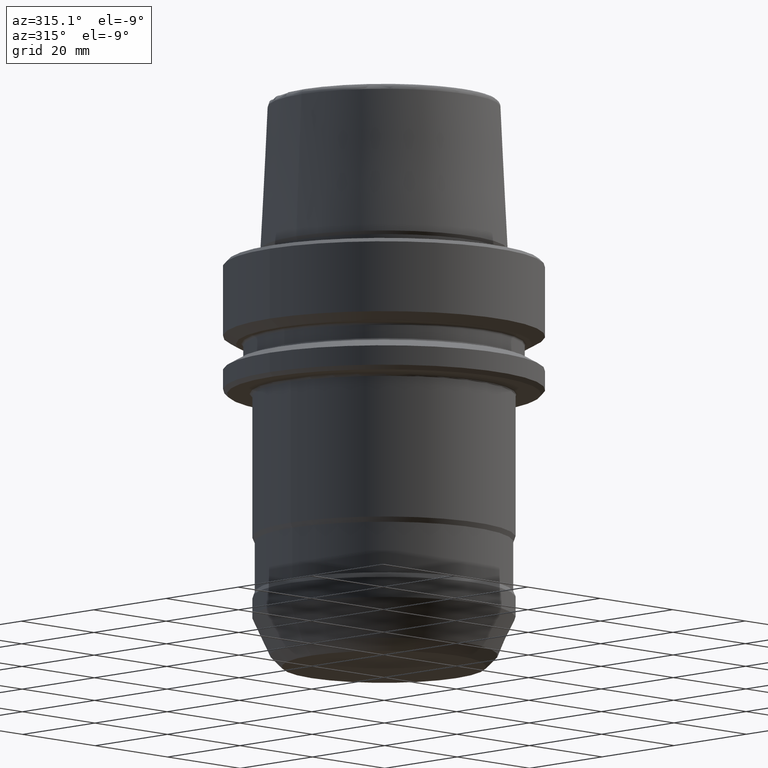
[diagram: clean part render]
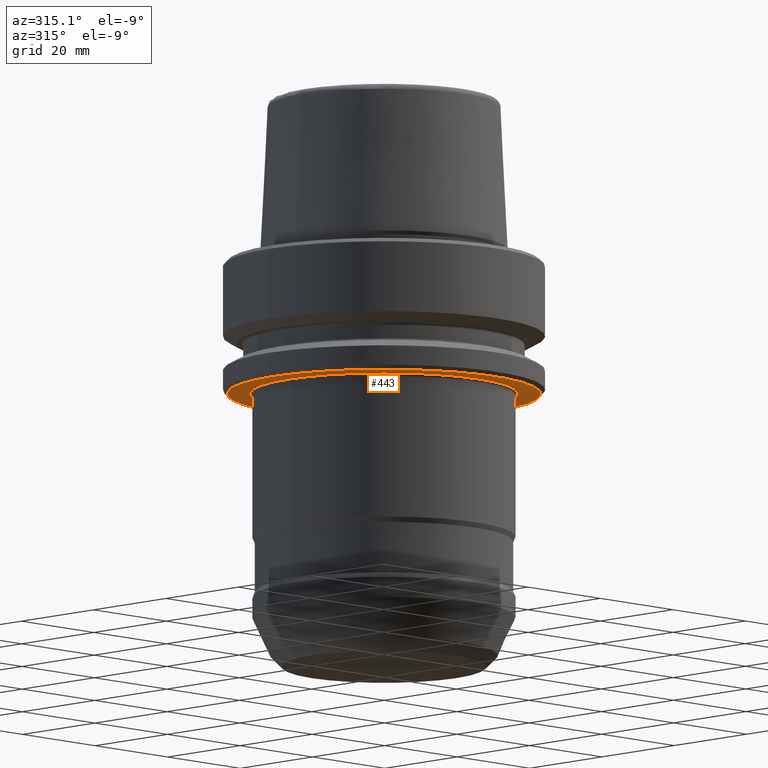
[diagram: same view with one face highlighted and labeled with its STEP entity id]
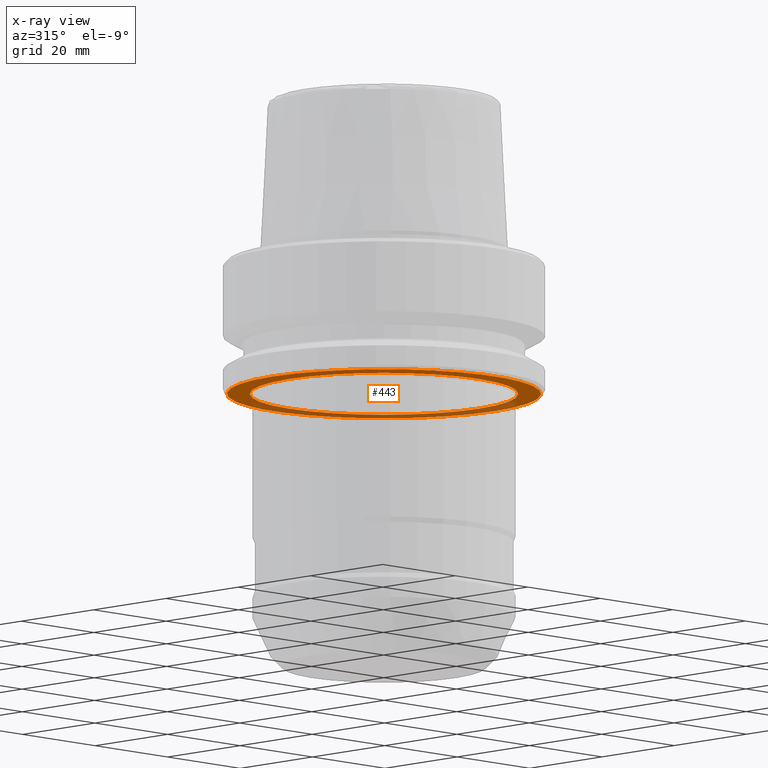
[diagram: x-ray of the same camera — body ghosted, the highlighted face saturated]
A machine part, auxiliary view. The second image highlights one B-rep face of the part: STEP entity #443.
The next image is the same camera in x-ray: the body ghosted, the highlighted face saturated — about 35% of this face is hidden behind the body in this view.
In plain terms, the highlighted planar face has unit normal (0, 0, -1).
Its self-contained STEP definition (entity closure, byte-faithful):
#18 = EDGE_CURVE ( 'NONE', #1224, #1352, #1247, .T. ) ;
#28 = AXIS2_PLACEMENT_3D ( 'NONE', #797, #1065, #1190 ) ;
#53 = DIRECTION ( 'NONE',  ( -0.0000000000000000000, -0.0000000000000000000, 1.000000000000000000 ) ) ;
#56 = VERTEX_POINT ( 'NONE', #414 ) ;
#79 = ORIENTED_EDGE ( 'NONE', *, *, #18, .F. ) ;
#185 = DIRECTION ( 'NONE',  ( -0.0000000000000000000, -0.0000000000000000000, 1.000000000000000000 ) ) ;
#198 = ORIENTED_EDGE ( 'NONE', *, *, #1149, .F. ) ;
#249 = DIRECTION ( 'NONE',  ( 1.000000000000000000, 0.0000000000000000000, 0.0000000000000000000 ) ) ;
#292 = AXIS2_PLACEMENT_3D ( 'NONE', #590, #185, #293 ) ;
#293 = DIRECTION ( 'NONE',  ( 1.000000000000000000, 0.0000000000000000000, 0.0000000000000000000 ) ) ;
#295 = FACE_OUTER_BOUND ( 'NONE', #467, .T. ) ;
#327 = CARTESIAN_POINT ( 'NONE',  ( 0.0000000000000000000, 0.0000000000000000000, -25.99999999999980100 ) ) ;
#383 = DIRECTION ( 'NONE',  ( 1.000000000000000000, 0.0000000000000000000, 0.0000000000000000000 ) ) ;
#414 = CARTESIAN_POINT ( 'NONE',  ( 26.25000000005185500, 0.0000000000000000000, -25.99999999999995400 ) ) ;
#443 = ADVANCED_FACE ( 'NONE', ( #1163, #295 ), #1403, .T. ) ;
#467 = EDGE_LOOP ( 'NONE', ( #79, #198 ) ) ;
#493 = CIRCLE ( 'NONE', #292, 26.25000000005188400 ) ;
#498 = AXIS2_PLACEMENT_3D ( 'NONE', #327, #1010, #249 ) ;
#551 = CARTESIAN_POINT ( 'NONE',  ( -30.70000000000015900, 3.808651545348285800E-015, -25.99999999999980100 ) ) ;
#580 = VERTEX_POINT ( 'NONE', #1089 ) ;
#590 = CARTESIAN_POINT ( 'NONE',  ( 0.0000000000000000000, 0.0000000000000000000, -25.99999999999980100 ) ) ;
#675 = DIRECTION ( 'NONE',  ( 0.0000000000000000000, 0.0000000000000000000, -1.000000000000000000 ) ) ;
#718 = CIRCLE ( 'NONE', #28, 30.70000000000015900 ) ;
#766 = DIRECTION ( 'NONE',  ( -1.000000000000000000, 0.0000000000000000000, -0.0000000000000000000 ) ) ;
#783 = EDGE_CURVE ( 'NONE', #56, #580, #493, .T. ) ;
#797 = CARTESIAN_POINT ( 'NONE',  ( 0.0000000000000000000, 0.0000000000000000000, -25.99999999999980100 ) ) ;
#815 = CARTESIAN_POINT ( 'NONE',  ( 0.0000000000000000000, 0.0000000000000000000, -25.99999999999980100 ) ) ;
#874 = EDGE_LOOP ( 'NONE', ( #1170, #942 ) ) ;
#942 = ORIENTED_EDGE ( 'NONE', *, *, #1043, .T. ) ;
#1010 = DIRECTION ( 'NONE',  ( -0.0000000000000000000, -0.0000000000000000000, 1.000000000000000000 ) ) ;
#1043 = EDGE_CURVE ( 'NONE', #580, #56, #1101, .T. ) ;
#1065 = DIRECTION ( 'NONE',  ( -0.0000000000000000000, -0.0000000000000000000, 1.000000000000000000 ) ) ;
#1084 = CARTESIAN_POINT ( 'NONE',  ( 0.0000000000000000000, 0.0000000000000000000, -25.99999999999979700 ) ) ;
#1089 = CARTESIAN_POINT ( 'NONE',  ( -26.25000000005185500, 3.214697847768152700E-015, -25.99999999999995400 ) ) ;
#1101 = CIRCLE ( 'NONE', #498, 26.25000000005188400 ) ;
#1149 = EDGE_CURVE ( 'NONE', #1352, #1224, #718, .T. ) ;
#1151 = AXIS2_PLACEMENT_3D ( 'NONE', #1084, #675, #766 ) ;
#1163 = FACE_BOUND ( 'NONE', #874, .T. ) ;
#1170 = ORIENTED_EDGE ( 'NONE', *, *, #783, .T. ) ;
#1190 = DIRECTION ( 'NONE',  ( 1.000000000000000000, 0.0000000000000000000, 0.0000000000000000000 ) ) ;
#1224 = VERTEX_POINT ( 'NONE', #1374 ) ;
#1247 = CIRCLE ( 'NONE', #1303, 30.70000000000015900 ) ;
#1303 = AXIS2_PLACEMENT_3D ( 'NONE', #815, #53, #383 ) ;
#1352 = VERTEX_POINT ( 'NONE', #551 ) ;
#1374 = CARTESIAN_POINT ( 'NONE',  ( 30.70000000000015900, 0.0000000000000000000, -25.99999999999980100 ) ) ;
#1403 = PLANE ( 'NONE',  #1151 ) ;